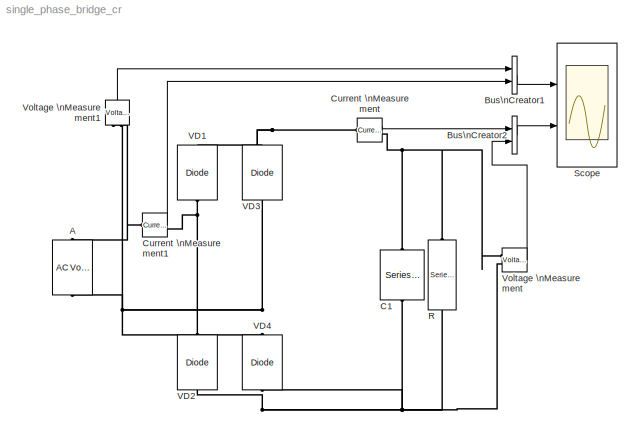
MODEL single_phase_bridge_cr
KIND model
BLOCK [Reference] A  REF=powerlib/Electrical\nSources/AC Voltage Source
  Amplitude = 100
  Frequency = 50
  Measurements = None
  Phase = 0
  Ports = [0, 0, 0, 0, 0, 1, 1]
  SampleTime = 0
  ShowPortLabels = on
  SourceBlock = powerlib/Electrical\nSources/AC Voltage Source
  SourceType = AC Voltage Source
BLOCK [BusCreator] Bus\nCreator1
  DialogController = Simulink.DDGSource_Bus
  DisplayOption = bar
  Inputs = 2
  Ports = [2, 1]
BLOCK [BusCreator] Bus\nCreator2
  DialogController = Simulink.DDGSource_Bus
  DisplayOption = bar
  Inputs = 2
  Ports = [2, 1]
BLOCK [Reference] C1  REF=powerlib/Elements/Series RLC Branch
  Capacitance = 0.001
  Inductance = 0
  LConnTagsString = __new0
  LeftPortType = p1
  Measurements = None
  PhysicalDomain = powersysdomain
  Ports = [0, 0, 0, 0, 0, 1, 1]
  RConnTagsString = __new0
  Resistance = 0
  RightPortType = p1
  SourceBlock = powerlib/Elements/Series RLC Branch
  SourceType = Series RLC Branch
  SubClassName = unknown
BLOCK [Reference] Current \nMeasurement  REF=powerlib/Measurements/Current Measurement
  OutputType = Complex
  PSBequivalent = 0
  PhasorSimulation = off
  Ports = [0, 1, 0, 0, 0, 1, 1]
  ShowPortLabels = on
  SourceBlock = powerlib/Measurements/Current Measurement
  SourceType = Current Measurement
BLOCK [Reference] Current \nMeasurement1  REF=powerlib/Measurements/Current Measurement
  OutputType = Complex
  PSBequivalent = 0
  PhasorSimulation = off
  Ports = [0, 1, 0, 0, 0, 1, 1]
  ShowPortLabels = on
  SourceBlock = powerlib/Measurements/Current Measurement
  SourceType = Current Measurement
BLOCK [Reference] R  REF=powerlib/Elements/Series RLC Branch
  Capacitance = inf
  Inductance = 0
  LConnTagsString = __new0
  LeftPortType = p1
  Measurements = None
  PhysicalDomain = powersysdomain
  Ports = [0, 0, 0, 0, 0, 1, 1]
  RConnTagsString = __new0
  Resistance = 10
  RightPortType = p1
  SourceBlock = powerlib/Elements/Series RLC Branch
  SourceType = Series RLC Branch
  SubClassName = unknown
BLOCK [Scope] Scope
  DataFormat = StructureWithTime
  Decimation = 5
  NumInputPorts = 2
  Ports = [2]
  SampleInput = on
  SampleTime = 1e-4
  TimeRange = 0.05
  YMax = 100~100
  YMin = -100~0
BLOCK [Reference] VD1  REF=powerlib/Power\nElectronics/Diode
  Cs = 250e-9
  IC = 0
  Lon = 0
  Measurements = off
  Ports = [0, 0, 0, 0, 0, 1, 1]
  Ron = 0.001
  Rs = 500
  ShowPortLabels = on
  SourceBlock = powerlib/Power\nElectronics/Diode
  SourceType = Diode
  Vf = 0.8
BLOCK [Reference] VD2  REF=powerlib/Power\nElectronics/Diode
  Cs = 250e-9
  IC = 0
  Lon = 0
  Measurements = off
  Ports = [0, 0, 0, 0, 0, 1, 1]
  Ron = 0.001
  Rs = 500
  ShowPortLabels = on
  SourceBlock = powerlib/Power\nElectronics/Diode
  SourceType = Diode
  Vf = 0.8
BLOCK [Reference] VD3  REF=powerlib/Power\nElectronics/Diode
  Cs = 250e-9
  IC = 0
  Lon = 0
  Measurements = off
  Ports = [0, 0, 0, 0, 0, 1, 1]
  Ron = 0.001
  Rs = 500
  ShowPortLabels = on
  SourceBlock = powerlib/Power\nElectronics/Diode
  SourceType = Diode
  Vf = 0.8
BLOCK [Reference] VD4  REF=powerlib/Power\nElectronics/Diode
  Cs = 250e-9
  IC = 0
  Lon = 0
  Measurements = off
  Ports = [0, 0, 0, 0, 0, 1, 1]
  Ron = 0.001
  Rs = 500
  ShowPortLabels = on
  SourceBlock = powerlib/Power\nElectronics/Diode
  SourceType = Diode
  Vf = 0.8
BLOCK [Reference] Voltage \nMeasurement  REF=powerlib/Measurements/Voltage Measurement
  OutputType = Complex
  PSBequivalent = 0
  PhasorSimulation = off
  Ports = [0, 1, 0, 0, 0, 2]
  ShowPortLabels = on
  SourceBlock = powerlib/Measurements/Voltage Measurement
  SourceType = Voltage Measurement
BLOCK [Reference] Voltage \nMeasurement1  REF=powerlib/Measurements/Voltage Measurement
  OutputType = Complex
  PSBequivalent = 0
  PhasorSimulation = off
  Ports = [0, 1, 0, 0, 0, 2]
  ShowPortLabels = on
  SourceBlock = powerlib/Measurements/Voltage Measurement
  SourceType = Voltage Measurement
LINE Bus\nCreator1:1 -> Scope:1
LINE Bus\nCreator2:1 -> Scope:2
LINE Current \nMeasurement1:1 -> Bus\nCreator1:2
LINE Current \nMeasurement:1 -> Bus\nCreator2:1
LINE Voltage \nMeasurement1:1 -> Bus\nCreator1:1
LINE Voltage \nMeasurement:1 -> Bus\nCreator2:2
PNET net1: A:LConn1 -- VD3:LConn1 -- VD4:RConn1 -- Voltage \nMeasurement1:LConn2
PNET net2: A:RConn1 -- Current \nMeasurement1:LConn1 -- Voltage \nMeasurement1:LConn1
PNET net3: C1:LConn1 -- R:RConn1 -- VD2:LConn1 -- VD4:LConn1 -- Voltage \nMeasurement:LConn2
PNET net4: C1:RConn1 -- Current \nMeasurement:RConn1 -- R:LConn1 -- Voltage \nMeasurement:LConn1
PNET net5: Current \nMeasurement1:RConn1 -- VD1:LConn1 -- VD2:RConn1
PNET net6: Current \nMeasurement:LConn1 -- VD1:RConn1 -- VD3:RConn1
note: PNET lines group multi-terminal physical nets as a canonical sorted terminal list (undirected conserving connections); 2-terminal nets keep the pairwise PLINE form
